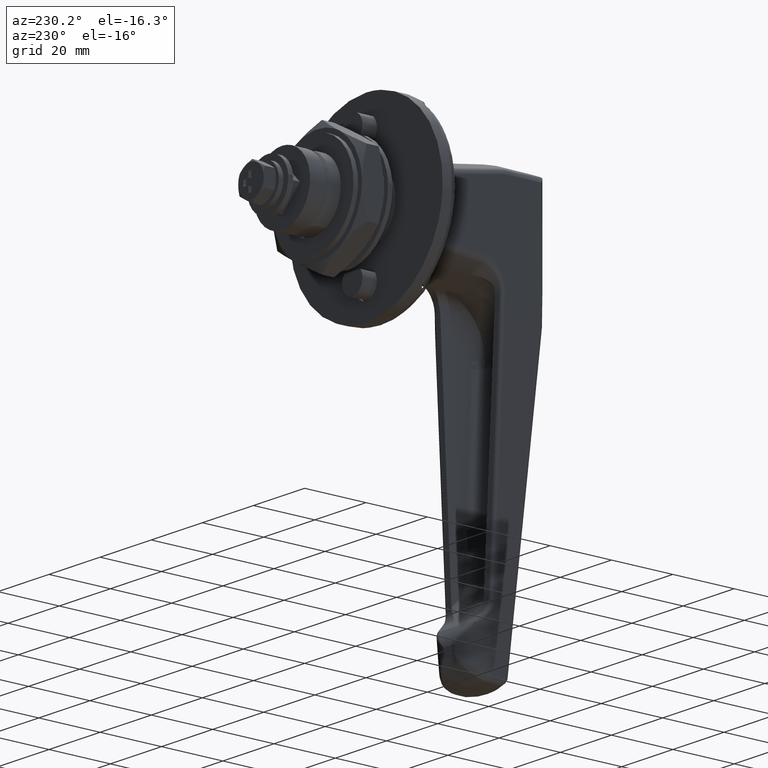
[diagram: clean part render]
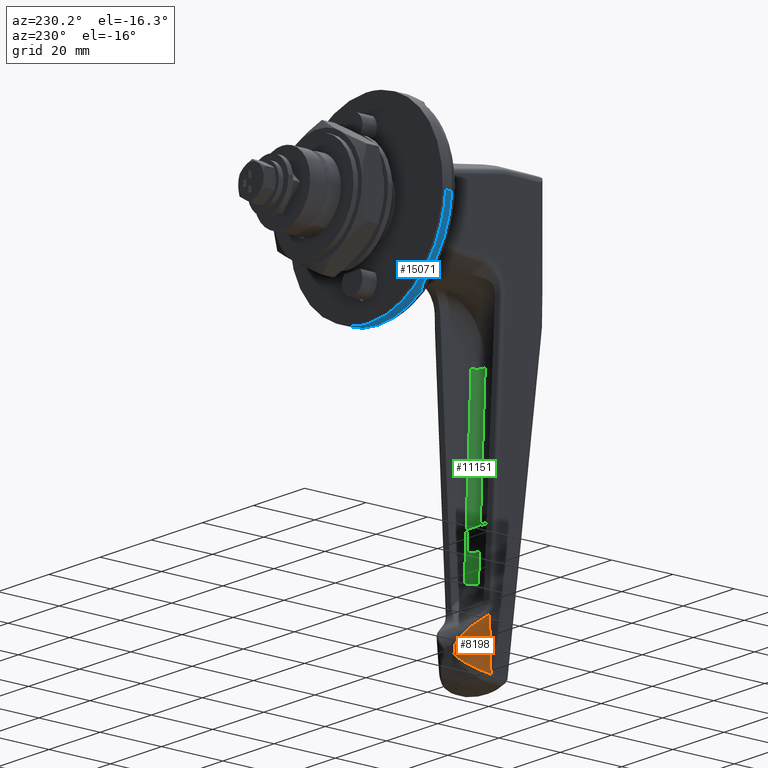
[diagram: same view with three faces highlighted in distinct colors, each labeled with its STEP entity id]
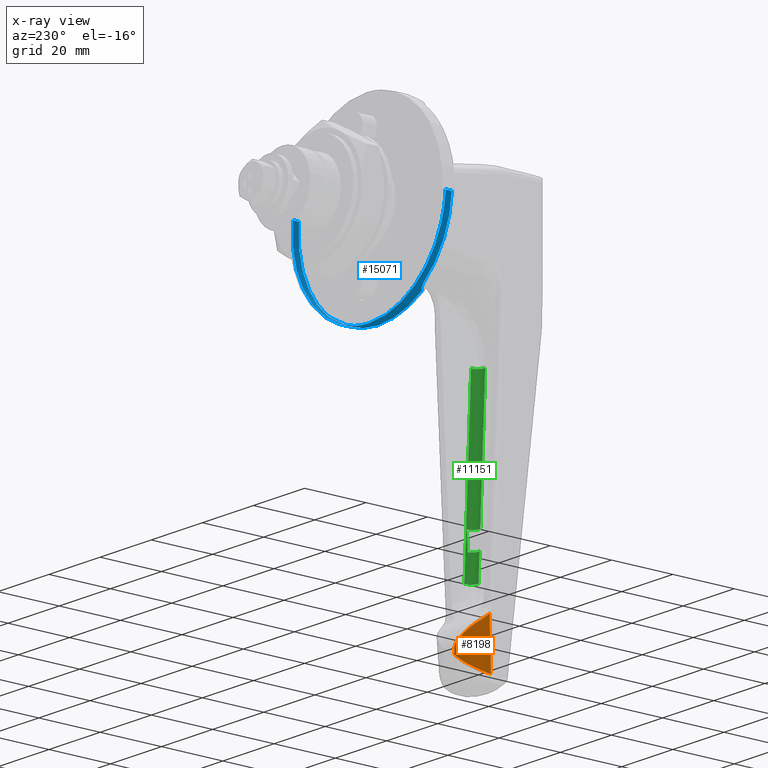
[diagram: x-ray of the same camera — body ghosted, the three highlighted faces saturated]
A machine part, auxiliary view with three faces highlighted in distinct colors.
The next image is the same camera in x-ray (body ghosted, the three faces saturated) — at least one of them is partly hidden behind the body in this view.
Their STEP definitions:

[orange] entity #8198 — the highlighted face is a freeform B-spline surface patch.
#5517=CARTESIAN_POINT('',(-32.765593022223747,8.956308236593490,-101.757900828145000));
#5518=VERTEX_POINT('',#5517);
#5586=CARTESIAN_POINT('',(-32.244694892669202,8.901885356179239,-102.235023154359200));
#5587=VERTEX_POINT('',#5586);
#5601=CARTESIAN_POINT('',(-32.765593022223747,8.956308236593490,-101.757900828144800));
#5602=CARTESIAN_POINT('',(-32.724210206954567,8.953932934731332,-101.799942866783000));
#5603=CARTESIAN_POINT('',(-32.682160678715810,8.951050644539311,-101.841550528935300));
#5604=CARTESIAN_POINT('',(-32.597250492678207,8.944238833378870,-101.923409670291800));
#5605=CARTESIAN_POINT('',(-32.468418833319667,8.932435929659073,-102.044416625780700));
#5606=CARTESIAN_POINT('',(-32.335287509796849,8.915602621601362,-102.160155564901700));
#5607=CARTESIAN_POINT('',(-32.244694892669202,8.901885356179239,-102.235023154359000));
#5608=B_SPLINE_CURVE_WITH_KNOTS('',3,(#5601,#5602,#5603,#5604,#5605,#5606,#5607),.UNSPECIFIED.,.F.,.U.,(4,2,1,4),(0.0,0.250000000000005,0.500000000000009,1.0),.UNSPECIFIED.);
#5609=EDGE_CURVE('',#5518,#5587,#5608,.T.);
#5682=CARTESIAN_POINT('',(-29.570555912119101,7.712681626440290,-104.440881089107410));
#5683=VERTEX_POINT('',#5682);
#5697=CARTESIAN_POINT('',(-32.244694892669202,8.901885356179239,-102.235023154359200));
#5698=CARTESIAN_POINT('',(-32.125854096547613,8.883890835267243,-102.333235616002400));
#5699=CARTESIAN_POINT('',(-32.007503476589733,8.861740013966099,-102.431025906224900));
#5700=CARTESIAN_POINT('',(-31.771772814002130,8.809208553304583,-102.625770537909300));
#5701=CARTESIAN_POINT('',(-31.654300183224901,8.778783719564222,-102.722801265033990));
#5702=CARTESIAN_POINT('',(-31.305972092992040,8.676001528101994,-103.010460678486890));
#5703=CARTESIAN_POINT('',(-31.078322004813941,8.592025696286733,-103.198388658849500));
#5704=CARTESIAN_POINT('',(-30.631929632516499,8.393862684114872,-103.566699935362290));
#5705=CARTESIAN_POINT('',(-30.413187059519721,8.279676669412593,-103.747083589088110));
#5706=CARTESIAN_POINT('',(-29.984837312132051,8.020186652845180,-104.100031618162210));
#5707=CARTESIAN_POINT('',(-29.775225320554728,7.874899753305945,-104.272600537861810));
#5708=CARTESIAN_POINT('',(-29.570555912119101,7.712681626440280,-104.440881089107410));
#5709=B_SPLINE_CURVE_WITH_KNOTS('',3,(#5697,#5698,#5699,#5700,#5701,#5702,#5703,#5704,#5705,#5706,#5707,#5708),.UNSPECIFIED.,.F.,.U.,(4,2,2,2,2,4),(0.0,0.125000000000002,0.250000000000003,0.500000000000002,0.750000000000001,1.0),.UNSPECIFIED.);
#5710=EDGE_CURVE('',#5587,#5683,#5709,.T.);
#5769=CARTESIAN_POINT('',(-27.100000000000001,2.230234855366315,-109.313708498984600));
#5770=VERTEX_POINT('',#5769);
#5801=CARTESIAN_POINT('',(-29.570555912119101,7.712681626440290,-104.440881089107410));
#5802=CARTESIAN_POINT('',(-29.351246788120559,7.538860264608465,-104.621198512027410));
#5803=CARTESIAN_POINT('',(-29.150309149125050,7.353850430143197,-104.805767579889410));
#5804=CARTESIAN_POINT('',(-28.779750416315149,6.965382695744132,-105.182811867575500));
#5805=CARTESIAN_POINT('',(-28.610168567388360,6.761896016632089,-105.375291020999100));
#5806=CARTESIAN_POINT('',(-28.299218491099349,6.338793414640874,-105.767890245727600));
#5807=CARTESIAN_POINT('',(-28.157868210712930,6.119164089158614,-105.968011860839700));
#5808=CARTESIAN_POINT('',(-27.965709593153250,5.778676685009764,-106.273906173927100));
#5809=CARTESIAN_POINT('',(-27.904990133727470,5.663308903190572,-106.376843312448200));
#5810=CARTESIAN_POINT('',(-27.791080891358110,5.431254416544082,-106.582653531263300));
#5811=CARTESIAN_POINT('',(-27.737728172474370,5.314291076449501,-106.685776098675500));
#5812=CARTESIAN_POINT('',(-27.587939531966779,4.960793330413890,-106.995834678588590));
#5813=CARTESIAN_POINT('',(-27.501740822275050,4.721661097827860,-107.203461359338900));
#5814=CARTESIAN_POINT('',(-27.354732947028790,4.237237846679991,-107.620756650706100));
#5815=CARTESIAN_POINT('',(-27.293932017697390,3.991943562361895,-107.830424455732000));
#5816=CARTESIAN_POINT('',(-27.221049843266670,3.619747276905851,-108.146618142374190));
#5817=CARTESIAN_POINT('',(-27.199815612945780,3.494970807436498,-108.252298230414500));
#5818=CARTESIAN_POINT('',(-27.163419044468132,3.244036853392226,-108.464253083671300));
#5819=CARTESIAN_POINT('',(-27.148252917735931,3.117783013353220,-108.570608328072790));
#5820=CARTESIAN_POINT('',(-27.124070413328599,2.864971409319164,-108.783068029408200));
#5821=CARTESIAN_POINT('',(-27.115033517080779,2.738304431475718,-108.889265109428390));
#5822=CARTESIAN_POINT('',(-27.106005344062410,2.547937147314449,-109.048536352140800));
#5823=CARTESIAN_POINT('',(-27.103750749365961,2.484412114601210,-109.101629437131710));
#5824=CARTESIAN_POINT('',(-27.101498413573509,2.389075961672659,-109.181232195176700));
#5825=CARTESIAN_POINT('',(-27.100935834871340,2.357288599670265,-109.207760759029500));
#5826=CARTESIAN_POINT('',(-27.100186325268361,2.293697027602217,-109.260807018305400));
#5827=CARTESIAN_POINT('',(-27.100000000000009,2.261675567271687,-109.287504116953100));
#5828=CARTESIAN_POINT('',(-27.100000000000001,2.230234855366320,-109.313708498984600));
#5829=B_SPLINE_CURVE_WITH_KNOTS('',3,(#5801,#5802,#5803,#5804,#5805,#5806,#5807,#5808,#5809,#5810,#5811,#5812,#5813,#5814,#5815,#5816,#5817,#5818,#5819,#5820,#5821,#5822,#5823,#5824,#5825,#5826,#5827,#5828),.UNSPECIFIED.,.F.,.U.,(4,2,2,2,2,2,2,2,2,2,2,2,2,4),(0.0,0.124999999999997,0.249999999999994,0.374999999999991,0.437499999999989,0.499999999999988,0.624999999999988,0.749999999999987,0.812499999999989,0.874999999999991,0.937499999999992,0.968749999999994,0.984374999999997,1.0),.UNSPECIFIED.);
#5830=EDGE_CURVE('',#5683,#5770,#5829,.T.);
#6967=CARTESIAN_POINT('',(-27.100000000000001,1.879582369733885,-111.895773735327400));
#6968=VERTEX_POINT('',#6967);
#6969=CARTESIAN_POINT('',(-33.981590842281364,8.084858411354070,-117.183366468084000));
#6970=VERTEX_POINT('',#6969);
#6971=CARTESIAN_POINT('',(-27.100000000000001,1.879582369733880,-111.895773735327400));
#6972=CARTESIAN_POINT('',(-27.099999999999991,2.251876271627749,-112.217803688522690));
#6973=CARTESIAN_POINT('',(-27.139197394631090,2.623964084839884,-112.532876163052610));
#6974=CARTESIAN_POINT('',(-27.256600881536620,3.180184349342706,-112.996079566092210));
#6975=CARTESIAN_POINT('',(-27.305560446368329,3.365285074149444,-113.148937477529900));
#6976=CARTESIAN_POINT('',(-27.394256440801829,3.642271269659049,-113.376053726953200));
#6977=CARTESIAN_POINT('',(-27.426277567222961,3.734183940854453,-113.451146558233400));
#6978=CARTESIAN_POINT('',(-27.494972210450410,3.916465440818941,-113.599593660019290));
#6979=CARTESIAN_POINT('',(-27.531679662795678,4.006941543961628,-113.673035897706000));
#6980=CARTESIAN_POINT('',(-27.726987719146759,4.455925841991786,-114.036451668559290));
#6981=CARTESIAN_POINT('',(-27.920604379201460,4.804348583505875,-114.315112476073000));
#6982=CARTESIAN_POINT('',(-28.211749758555200,5.224293050508469,-114.649352946297000));
#6983=CARTESIAN_POINT('',(-28.272454175971610,5.307495903612101,-114.715492251733910));
#6984=CARTESIAN_POINT('',(-28.398956572505380,5.472245523023075,-114.846360441553600));
#6985=CARTESIAN_POINT('',(-28.464881746072258,5.553928379257349,-114.911197243607210));
#6986=CARTESIAN_POINT('',(-28.668710393231859,5.794232499092249,-115.101917127595100));
#6987=CARTESIAN_POINT('',(-28.813071122730360,5.948720696779230,-115.224494815216500));
#6988=CARTESIAN_POINT('',(-29.118838238644681,6.245877771143564,-115.460868154526000));
#6989=CARTESIAN_POINT('',(-29.280243101510479,6.388548592185576,-115.574663480458990));
#6990=CARTESIAN_POINT('',(-29.535544276321989,6.593148616725787,-115.738881211850300));
#6991=CARTESIAN_POINT('',(-29.622847303956171,6.659778142428118,-115.792539670588200));
#6992=CARTESIAN_POINT('',(-29.801975577511051,6.789767601515602,-115.897694229612100));
#6993=CARTESIAN_POINT('',(-29.893893365163411,6.853188141476921,-115.949239809639000));
#6994=CARTESIAN_POINT('',(-30.364189416655940,7.161078283837039,-116.201000668217600));
#6995=CARTESIAN_POINT('',(-30.766129809468531,7.372878018785907,-116.379116700509900));
#6996=CARTESIAN_POINT('',(-31.301412665369170,7.591411321710607,-116.574406651615400));
#6997=CARTESIAN_POINT('',(-31.410126667723329,7.632786088728645,-116.612085445275800));
#6998=CARTESIAN_POINT('',(-31.630949651234509,7.710702821140878,-116.684682903241400));
#6999=CARTESIAN_POINT('',(-31.743273996956809,7.747308438726891,-116.719664454579500));
#7000=CARTESIAN_POINT('',(-32.084045552230599,7.849123345035231,-116.820011673758400));
#7001=CARTESIAN_POINT('',(-32.314235248526430,7.905787354950514,-116.880219657006510));
#7002=CARTESIAN_POINT('',(-32.780488198524800,7.996592952608050,-116.988027805386910));
#7003=CARTESIAN_POINT('',(-33.016551551392837,8.030736445708637,-117.035626122578900));
#7004=CARTESIAN_POINT('',(-33.375077417434177,8.064455299481011,-117.097874718486490));
#7005=CARTESIAN_POINT('',(-33.495325881945583,8.072773157244914,-117.117096814382510));
#7006=CARTESIAN_POINT('',(-33.676824492273717,8.080735037277085,-117.143654457018000));
#7007=CARTESIAN_POINT('',(-33.737511774885462,8.082636093524577,-117.152127596784500));
#7008=CARTESIAN_POINT('',(-33.859265697538277,8.084904987509228,-117.168315767624700));
#7009=CARTESIAN_POINT('',(-33.920498003418118,8.085271720107643,-117.176050521953500));
#7010=CARTESIAN_POINT('',(-33.981590842281364,8.084858411354080,-117.183366468083800));
#7011=B_SPLINE_CURVE_WITH_KNOTS('',3,(#6971,#6972,#6973,#6974,#6975,#6976,#6977,#6978,#6979,#6980,#6981,#6982,#6983,#6984,#6985,#6986,#6987,#6988,#6989,#6990,#6991,#6992,#6993,#6994,#6995,#6996,#6997,#6998,#6999,#7000,#7001,#7002,#7003,#7004,#7005,#7006,#7007,#7008,#7009,#7010),.UNSPECIFIED.,.F.,.U.,(4,2,2,2,2,2,2,2,2,2,2,2,2,2,2,2,2,2,2,4),(0.0,0.125000000000003,0.187500000000004,0.218750000000004,0.250000000000004,0.375000000000003,0.406250000000002,0.437500000000002,0.500000000000002,0.562500000000001,0.593750000000000,0.624999999999998,0.749999999999995,0.781249999999996,0.812499999999997,0.874999999999997,0.937499999999997,0.968749999999998,0.984374999999999,1.0),.UNSPECIFIED.);
#7012=EDGE_CURVE('',#6968,#6970,#7011,.T.);
#8137=CARTESIAN_POINT('',(-32.758297035303400,8.961536935544936,-101.665348034305100));
#8138=CARTESIAN_POINT('',(-27.099999999999998,8.961536935544926,-101.665348034305010));
#8139=CARTESIAN_POINT('',(-27.100000000000001,3.312247848915322,-101.346195789427300));
#8140=CARTESIAN_POINT('',(-32.872198023535610,8.879909325155918,-103.110232022869990));
#8141=CARTESIAN_POINT('',(-27.099999999999998,8.879909325155907,-103.110232022869910));
#8142=CARTESIAN_POINT('',(-27.100000000000001,3.116900579455411,-102.784655273258490));
#8143=CARTESIAN_POINT('',(-32.986099011767813,8.798281714766899,-104.555116011434900));
#8144=CARTESIAN_POINT('',(-27.099999999999998,8.798281714766890,-104.555116011434810));
#8145=CARTESIAN_POINT('',(-27.100000000000001,2.921553309995498,-104.223114757089800));
#8146=CARTESIAN_POINT('',(-33.099999999999987,8.716654104377881,-106.0));
#8147=CARTESIAN_POINT('',(-27.099999999999998,8.716654104377874,-105.999999999999740));
#8148=CARTESIAN_POINT('',(-27.100000000000001,2.726206040535585,-105.661574240921000));
#8149=CARTESIAN_POINT('',(-33.396295609733919,8.504312640386127,-109.758639753974510));
#8150=CARTESIAN_POINT('',(-27.099999999999998,8.504312640386118,-109.758639753974350));
#8151=CARTESIAN_POINT('',(-27.100000000000001,2.218040666267931,-109.403501650456410));
#8152=CARTESIAN_POINT('',(-33.692591219467843,8.291971176394373,-113.517279507949100));
#8153=CARTESIAN_POINT('',(-27.099999999999998,8.291971176394361,-113.517279507949070));
#8154=CARTESIAN_POINT('',(-27.100000000000001,1.709875292000276,-113.145429059991700));
#8155=CARTESIAN_POINT('',(-33.988886829201711,8.079629712402621,-117.275919261923800));
#8156=CARTESIAN_POINT('',(-27.099999999999998,8.079629712402605,-117.275919261923830));
#8157=CARTESIAN_POINT('',(-27.100000000000001,1.201709917732618,-116.887356469527010));
#8165=(BOUNDED_SURFACE()B_SPLINE_SURFACE(2,3,((#8137,#8140,#8143,#8146,#8149,#8152,#8155),(#8138,#8141,#8144,#8147,#8150,#8153,#8156),(#8139,#8142,#8145,#8148,#8151,#8154,#8157)),.UNSPECIFIED.,.F.,.F.,.U.)B_SPLINE_SURFACE_WITH_KNOTS((3,3),(4,3,4),(0.0,11.413881417234929),(0.0,4.354989802604458,15.683814766940539),.UNSPECIFIED.)GEOMETRIC_REPRESENTATION_ITEM()RATIONAL_B_SPLINE_SURFACE(((1.0,1.0,1.0,1.0,1.0,1.0,1.0),(0.707106781186548,0.707106781186548,0.707106781186548,0.707106781186548,0.707106781186548,0.707106781186548,0.707106781186548),(1.0,1.0,1.0,1.0,1.0,1.0,1.0)))REPRESENTATION_ITEM('')SURFACE());
#8166=CARTESIAN_POINT('',(-32.765593022223733,8.956308236593497,-101.757900828144900));
#8167=CARTESIAN_POINT('',(-32.877062014815820,8.876423525854957,-103.171933885429890));
#8168=CARTESIAN_POINT('',(-32.988531007407907,8.796538815116419,-104.585966942715000));
#8169=CARTESIAN_POINT('',(-33.099999999999987,8.716654104377881,-106.0));
#8170=CARTESIAN_POINT('',(-33.393863614093803,8.506055540036604,-109.727788822694710));
#8171=CARTESIAN_POINT('',(-33.687727228187612,8.295456975695332,-113.455577645389300));
#8172=CARTESIAN_POINT('',(-33.981590842281371,8.084858411354055,-117.183366468084100));
#8173=B_SPLINE_CURVE_WITH_KNOTS('',3,(#8166,#8167,#8168,#8169,#8170,#8171,#8172),.UNSPECIFIED.,.F.,.U.,(4,3,4),(0.417252876407138,0.458886859136457,0.568645746782704),.UNSPECIFIED.);
#8174=EDGE_CURVE('',#5518,#6970,#8173,.T.);
#8175=ORIENTED_EDGE('',*,*,#8174,.F.);
#8176=ORIENTED_EDGE('',*,*,#5609,.T.);
#8177=ORIENTED_EDGE('',*,*,#5710,.T.);
#8178=ORIENTED_EDGE('',*,*,#5830,.T.);
#8179=CARTESIAN_POINT('',(-27.100000000000001,2.054908612550108,-110.604741117156000));
#8180=VERTEX_POINT('',#8179);
#8181=CARTESIAN_POINT('',(-27.100000000000001,2.054908612550108,-110.604741117156000));
#8182=CARTESIAN_POINT('',(-27.100000000000001,2.113350693488845,-110.174396911098900));
#8183=CARTESIAN_POINT('',(-27.100000000000001,2.171792774427581,-109.744052705041700));
#8184=CARTESIAN_POINT('',(-27.100000000000001,2.230234855366318,-109.313708498984600));
#8185=B_SPLINE_CURVE_WITH_KNOTS('',3,(#8181,#8182,#8183,#8184),.UNSPECIFIED.,.F.,.U.,(4,4),(0.507618132198583,0.520345532390288),.UNSPECIFIED.);
#8186=EDGE_CURVE('',#8180,#5770,#8185,.T.);
#8187=ORIENTED_EDGE('',*,*,#8186,.F.);
#8188=CARTESIAN_POINT('',(-27.100000000000001,1.879582369733899,-111.895773735327400));
#8189=CARTESIAN_POINT('',(-27.100000000000001,1.938024450672635,-111.465429529270300));
#8190=CARTESIAN_POINT('',(-27.100000000000001,1.996466531611371,-111.035085323213200));
#8191=CARTESIAN_POINT('',(-27.100000000000001,2.054908612550108,-110.604741117156000));
#8192=B_SPLINE_CURVE_WITH_KNOTS('',3,(#8188,#8189,#8190,#8191),.UNSPECIFIED.,.F.,.U.,(4,4),(0.494890732006878,0.507618132198583),.UNSPECIFIED.);
#8193=EDGE_CURVE('',#6968,#8180,#8192,.T.);
#8194=ORIENTED_EDGE('',*,*,#8193,.F.);
#8195=ORIENTED_EDGE('',*,*,#7012,.T.);
#8196=EDGE_LOOP('',(#8175,#8176,#8177,#8178,#8187,#8194,#8195));
#8197=FACE_OUTER_BOUND('',#8196,.T.);
#8198=ADVANCED_FACE('',(#8197),#8165,.T.);

[blue] entity #15071 — the highlighted face is a freeform B-spline surface patch.
#14730=CARTESIAN_POINT('',(-2.999999999998411,-29.790287132915271,3.541015749517845));
#14731=VERTEX_POINT('',#14730);
#14745=CARTESIAN_POINT('',(-0.999999999999890,-29.790290576313691,3.540986780143569));
#14746=VERTEX_POINT('',#14745);
#14747=CARTESIAN_POINT('',(-0.999999999999890,-29.790290576313691,3.540986780143569));
#14748=CARTESIAN_POINT('',(-2.999999999998411,-29.790287132915271,3.541015749517845));
#14749=QUASI_UNIFORM_CURVE('',1,(#14747,#14748),.UNSPECIFIED.,.F.,.U.);
#14750=EDGE_CURVE('',#14746,#14731,#14749,.T.);
#14767=CARTESIAN_POINT('',(-0.999999999999890,29.944045026257431,-1.831438632648637));
#14768=VERTEX_POINT('',#14767);
#14784=CARTESIAN_POINT('',(-2.999999999997995,29.944045772213190,-1.831426436063631));
#14785=VERTEX_POINT('',#14784);
#14786=CARTESIAN_POINT('',(-0.999999999999890,29.944045026257431,-1.831438632648637));
#14787=CARTESIAN_POINT('',(-2.999999999997995,29.944045772213190,-1.831426436063631));
#14788=QUASI_UNIFORM_CURVE('',1,(#14786,#14787),.UNSPECIFIED.,.F.,.U.);
#14789=EDGE_CURVE('',#14768,#14785,#14788,.T.);
#14897=CARTESIAN_POINT('',(-0.923965625829298,29.944043952655999,-1.831456186045707));
#14898=CARTESIAN_POINT('',(-0.923965625829298,28.112587766610297,-31.775500138701705));
#14899=CARTESIAN_POINT('',(-0.923965625829298,-1.831456186045707,-29.944043952655999));
#14900=CARTESIAN_POINT('',(-0.923965625829298,-31.775500138701705,-28.112587766610297));
#14901=CARTESIAN_POINT('',(-0.923965625829298,-29.944043952655999,1.831456186045707));
#14902=CARTESIAN_POINT('',(-0.923965625829298,-29.891628463458165,2.688441859139328));
#14903=CARTESIAN_POINT('',(-0.923965625829298,-29.790285790909980,3.541027039702751));
#14904=CARTESIAN_POINT('',(-4.119310200348423,29.944043952655999,-1.831456186045707));
#14905=CARTESIAN_POINT('',(-4.119310200348424,28.112587766610297,-31.775500138701705));
#14906=CARTESIAN_POINT('',(-4.119310200348423,-1.831456186045707,-29.944043952655999));
#14907=CARTESIAN_POINT('',(-4.119310200348424,-31.775500138701705,-28.112587766610297));
#14908=CARTESIAN_POINT('',(-4.119310200348423,-29.944043952655999,1.831456186045707));
#14909=CARTESIAN_POINT('',(-4.119310200348424,-29.891628463458165,2.688441859139328));
#14910=CARTESIAN_POINT('',(-4.119310200348423,-29.790285790909980,3.541027039702751));
#14918=(BOUNDED_SURFACE()B_SPLINE_SURFACE(2,1,((#14897,#14904),(#14898,#14905),(#14899,#14906),(#14900,#14907),(#14901,#14908),(#14902,#14909),(#14903,#14910)),.UNSPECIFIED.,.F.,.F.,.U.)B_SPLINE_SURFACE_WITH_KNOTS((3,2,2,3),(2,2),(0.0,49.705627484771391,99.411254969542782,101.399480068933600),(0.0,3.195344574519126),.UNSPECIFIED.)GEOMETRIC_REPRESENTATION_ITEM()RATIONAL_B_SPLINE_SURFACE(((1.0,1.0),(0.707106781186548,0.707106781186548),(1.0,1.0),(0.707106781186548,0.707106781186548),(1.0,1.0),(0.988284271247462,0.988284271247462),(0.977505800795127,0.977505800795127)))REPRESENTATION_ITEM('')SURFACE());
#14919=CARTESIAN_POINT('',(-2.999999999999890,-18.688129573343851,-23.468144644387898));
#14920=VERTEX_POINT('',#14919);
#14921=CARTESIAN_POINT('',(-2.999999999998411,-29.790287132915264,3.541015749517845));
#14922=CARTESIAN_POINT('',(-2.999999999999890,-29.999999999999996,1.776717884785972));
#14923=CARTESIAN_POINT('',(-2.999999999999890,-30.0,0.0));
#14924=CARTESIAN_POINT('',(-2.999999999999890,-30.0,-14.460287250736613));
#14925=CARTESIAN_POINT('',(-2.999999999999890,-18.688129573343840,-23.468144644387881));
#14933=(BOUNDED_CURVE()B_SPLINE_CURVE(2,(#14921,#14922,#14923,#14924,#14925),.UNSPECIFIED.,.F.,.U.)B_SPLINE_CURVE_WITH_KNOTS((3,2,3),(0.432711680239094,0.500000000000000,1.0),.UNSPECIFIED.)CURVE()GEOMETRIC_REPRESENTATION_ITEM()RATIONAL_B_SPLINE_CURVE((0.976896835911661,0.986652102806900,1.0,0.900815644969822,1.0))REPRESENTATION_ITEM(''));
#14934=EDGE_CURVE('',#14731,#14920,#14933,.T.);
#14935=ORIENTED_EDGE('',*,*,#14934,.T.);
#14936=CARTESIAN_POINT('',(-4.041374966823560,-17.024459363587599,-24.701574512114700));
#14937=VERTEX_POINT('',#14936);
#14938=CARTESIAN_POINT('',(-2.999999999999870,-18.688129573343851,-23.468144644387898));
#14939=CARTESIAN_POINT('',(-3.005584672686746,-18.669641037588320,-23.482867416769619));
#14940=CARTESIAN_POINT('',(-3.011345658906659,-18.650756312595330,-23.497869284343398));
#14941=CARTESIAN_POINT('',(-3.022991430698226,-18.613268911441740,-23.527575148456339));
#14942=CARTESIAN_POINT('',(-3.040732925836491,-18.557041315457241,-23.572021714482361));
#14943=CARTESIAN_POINT('',(-3.059362548399083,-18.500839600685008,-23.616121412402919));
#14944=CARTESIAN_POINT('',(-3.098019658664255,-18.388518042752921,-23.703827331759499));
#14945=CARTESIAN_POINT('',(-3.125659573807438,-18.313727363267720,-23.761652840222311));
#14946=CARTESIAN_POINT('',(-3.215854341003072,-18.090853563636340,-23.932322074559529));
#14947=CARTESIAN_POINT('',(-3.285944376638454,-17.943980660344661,-24.042570941862412));
#14948=CARTESIAN_POINT('',(-3.539941477780634,-17.514310302041110,-24.359301557660821));
#14949=CARTESIAN_POINT('',(-3.761205540291433,-17.253501124586659,-24.543717685992949));
#14950=CARTESIAN_POINT('',(-4.041374966823560,-17.024459363587599,-24.701574512114700));
#14951=B_SPLINE_CURVE_WITH_KNOTS('',3,(#14938,#14939,#14940,#14941,#14942,#14943,#14944,#14945,#14946,#14947,#14948,#14949,#14950),.UNSPECIFIED.,.F.,.U.,(4,2,1,2,2,2,4),(0.0,0.031249999999999,0.062499999999998,0.124999999999997,0.249999999999996,0.499999999999997,1.0),.UNSPECIFIED.);
#14952=EDGE_CURVE('',#14920,#14937,#14951,.T.);
#14953=ORIENTED_EDGE('',*,*,#14952,.T.);
#14954=CARTESIAN_POINT('',(-3.864578674720885,-8.895910E-016,-30.0));
#14955=VERTEX_POINT('',#14954);
#14956=CARTESIAN_POINT('',(-4.041374966823558,-17.024459363587599,-24.701574512114700));
#14957=CARTESIAN_POINT('',(-4.029682063513653,-16.399385505975079,-25.132378810964010));
#14958=CARTESIAN_POINT('',(-4.018298864711817,-15.760983419789550,-25.537424652622931));
#14959=CARTESIAN_POINT('',(-3.996288794977459,-14.458050278730591,-26.297023374993849));
#14960=CARTESIAN_POINT('',(-3.985660449640442,-13.793518370551491,-26.651574561347090));
#14961=CARTESIAN_POINT('',(-3.965174096529882,-12.438398092703160,-27.310324577441829));
#14962=CARTESIAN_POINT('',(-3.955293156687699,-11.747810438587180,-27.614524096288012));
#14963=CARTESIAN_POINT('',(-3.941081930153761,-10.692106581488570,-28.032518699564829));
#14964=CARTESIAN_POINT('',(-3.936456416965100,-10.336897913245849,-28.165459357293020));
#14965=CARTESIAN_POINT('',(-3.927484634621433,-9.619774065951582,-28.418383243883461));
#14966=CARTESIAN_POINT('',(-3.923159751421754,-9.259543217859095,-28.537763334186710));
#14967=CARTESIAN_POINT('',(-3.910753568745226,-8.175844713429211,-28.874346228229982));
#14968=CARTESIAN_POINT('',(-3.903231419412584,-7.448539535370493,-29.070318598676671));
#14969=CARTESIAN_POINT('',(-3.889963469968856,-5.984453991119490,-29.406639982607970));
#14970=CARTESIAN_POINT('',(-3.884215800937833,-5.247673286125022,-29.546986930845321));
#14971=CARTESIAN_POINT('',(-3.874756795977550,-3.764675859662766,-29.772297984554822));
#14972=CARTESIAN_POINT('',(-3.871043390131793,-3.018459260385282,-29.857262726474470));
#14973=CARTESIAN_POINT('',(-3.865955668852089,-1.516469366826673,-29.971111999453811));
#14974=CARTESIAN_POINT('',(-3.864578674720874,-0.760696680814574,-29.999999999999989));
#14975=CARTESIAN_POINT('',(-3.864578674720875,-5.081255E-015,-30.0));
#14976=B_SPLINE_CURVE_WITH_KNOTS('',3,(#14956,#14957,#14958,#14959,#14960,#14961,#14962,#14963,#14964,#14965,#14966,#14967,#14968,#14969,#14970,#14971,#14972,#14973,#14974,#14975),.UNSPECIFIED.,.F.,.U.,(4,2,2,2,2,2,2,2,2,4),(0.0,0.124999999999999,0.249999999999999,0.374999999999999,0.437499999999999,0.499999999999999,0.624999999999999,0.749999999999999,0.875000000000000,1.0),.UNSPECIFIED.);
#14977=EDGE_CURVE('',#14937,#14955,#14976,.T.);
#14978=ORIENTED_EDGE('',*,*,#14977,.T.);
#14979=CARTESIAN_POINT('',(-4.041374966823550,17.024459363586949,-24.701574512115151));
#14980=VERTEX_POINT('',#14979);
#14981=CARTESIAN_POINT('',(-3.864578674720880,-8.895910E-016,-30.0));
#14982=CARTESIAN_POINT('',(-3.864578674720880,0.760697378696045,-30.0));
#14983=CARTESIAN_POINT('',(-3.865955671102257,1.516469841480329,-29.971111948111229));
#14984=CARTESIAN_POINT('',(-3.871043383759201,3.018457568716646,-29.857262870065512));
#14985=CARTESIAN_POINT('',(-3.874756778823924,3.764672224588984,-29.772298373258700));
#14986=CARTESIAN_POINT('',(-3.884215736511085,5.247664130890624,-29.546988485365109));
#14987=CARTESIAN_POINT('',(-3.889963369059621,5.984441258923129,-29.406642456747850));
#14988=CARTESIAN_POINT('',(-3.903231210460251,7.448518075067407,-29.070323979032288));
#14989=CARTESIAN_POINT('',(-3.910753288173947,8.175818101836677,-28.874353593956940));
#14990=CARTESIAN_POINT('',(-3.923159333077081,9.259507726396494,-28.537774807097300));
#14991=CARTESIAN_POINT('',(-3.927484091160835,9.619729524212703,-28.418398370848099));
#14992=CARTESIAN_POINT('',(-3.936455937601240,10.336860699441459,-28.165473064792891));
#14993=CARTESIAN_POINT('',(-3.941081483848070,10.692072753013560,-28.032531645454210));
#14994=CARTESIAN_POINT('',(-3.955292809290348,11.747785979402810,-27.614534676844610));
#14995=CARTESIAN_POINT('',(-3.965173813893122,12.438378832301160,-27.310333474596671));
#14996=CARTESIAN_POINT('',(-3.985660278759903,13.793507631922299,-26.651580247287690));
#14997=CARTESIAN_POINT('',(-3.996288672699241,14.458042862493000,-26.297027532097729));
#14998=CARTESIAN_POINT('',(-4.018298819970743,15.760980948960921,-25.537426259591651));
#14999=CARTESIAN_POINT('',(-4.029682047645386,16.399384657695840,-25.132379395602630));
#15000=CARTESIAN_POINT('',(-4.041374966823559,17.024459363586949,-24.701574512115151));
#15001=B_SPLINE_CURVE_WITH_KNOTS('',3,(#14981,#14982,#14983,#14984,#14985,#14986,#14987,#14988,#14989,#14990,#14991,#14992,#14993,#14994,#14995,#14996,#14997,#14998,#14999,#15000),.UNSPECIFIED.,.F.,.U.,(4,2,2,2,2,2,2,2,2,4),(0.0,0.125000000000000,0.250000000000000,0.375000000000000,0.500000000000000,0.562500000000000,0.625000000000000,0.750000000000000,0.875000000000000,1.0),.UNSPECIFIED.);
#15002=EDGE_CURVE('',#14955,#14980,#15001,.T.);
#15003=ORIENTED_EDGE('',*,*,#15002,.T.);
#15004=CARTESIAN_POINT('',(-2.999999999999890,18.688129573343851,-23.468144644387898));
#15005=VERTEX_POINT('',#15004);
#15006=CARTESIAN_POINT('',(-4.041374966823545,17.024459363586949,-24.701574512115151));
#15007=CARTESIAN_POINT('',(-3.760828086122128,17.253809697754761,-24.543505015688929));
#15008=CARTESIAN_POINT('',(-3.540029505604159,17.514406603515500,-24.359213347131320));
#15009=CARTESIAN_POINT('',(-3.328952039840326,17.871166598871032,-24.096249946686068));
#15010=CARTESIAN_POINT('',(-3.289962918476277,17.944098639384851,-24.041999346350408));
#15011=CARTESIAN_POINT('',(-3.218559651968994,18.090735755531359,-23.931855096783149));
#15012=CARTESIAN_POINT('',(-3.185987829901320,18.164677657300398,-23.875788115044070));
#15013=CARTESIAN_POINT('',(-3.125780659088654,18.313405173444568,-23.761901511902671));
#15014=CARTESIAN_POINT('',(-3.098124392012159,18.388224205904049,-23.704055689867761));
#15015=CARTESIAN_POINT('',(-3.059419634862661,18.500668515790309,-23.616255542900578));
#15016=CARTESIAN_POINT('',(-3.040768770981609,18.556929293044600,-23.572110073703438));
#15017=CARTESIAN_POINT('',(-3.023008959453715,18.613212881373819,-23.527619498944091));
#15018=CARTESIAN_POINT('',(-3.011351545728406,18.650736969256279,-23.497884661348799));
#15019=CARTESIAN_POINT('',(-3.005577868436605,18.669663563612470,-23.482849478868498));
#15020=CARTESIAN_POINT('',(-2.999999999999890,18.688129573343851,-23.468144644387898));
#15021=B_SPLINE_CURVE_WITH_KNOTS('',3,(#15006,#15007,#15008,#15009,#15010,#15011,#15012,#15013,#15014,#15015,#15016,#15017,#15018,#15019,#15020),.UNSPECIFIED.,.F.,.U.,(4,2,2,2,2,1,2,4),(0.0,0.500000000000002,0.625000000000002,0.750000000000002,0.875000000000003,0.937500000000003,0.968750000000002,1.0),.UNSPECIFIED.);
#15022=EDGE_CURVE('',#14980,#15005,#15021,.T.);
#15023=ORIENTED_EDGE('',*,*,#15022,.T.);
#15024=CARTESIAN_POINT('',(-2.999999999999890,18.688129573343829,-23.468144644387881));
#15025=CARTESIAN_POINT('',(-2.999999999999890,29.129234231620824,-15.153694580292761));
#15026=CARTESIAN_POINT('',(-2.999999999997996,29.944045772213190,-1.831426436063631));
#15034=(BOUNDED_CURVE()B_SPLINE_CURVE(2,(#15024,#15025,#15026),.UNSPECIFIED.,.F.,.U.)B_SPLINE_CURVE_WITH_KNOTS((3,3),(0.0,0.465061728128951),.UNSPECIFIED.)CURVE()GEOMETRIC_REPRESENTATION_ITEM()RATIONAL_B_SPLINE_CURVE((1.0,0.907746304892620,0.987107261276918))REPRESENTATION_ITEM(''));
#15035=EDGE_CURVE('',#15005,#14785,#15034,.T.);
#15036=ORIENTED_EDGE('',*,*,#15035,.T.);
#15037=ORIENTED_EDGE('',*,*,#14789,.F.);
#15038=CARTESIAN_POINT('',(-0.999999999999890,0.0,-30.0));
#15039=VERTEX_POINT('',#15038);
#15040=CARTESIAN_POINT('',(-0.999999999999890,0.0,-30.0));
#15041=CARTESIAN_POINT('',(-0.999999999999890,28.221198581533315,-29.999999999999993));
#15042=CARTESIAN_POINT('',(-0.999999999999890,29.944045026257434,-1.831438632648637));
#15050=(BOUNDED_CURVE()B_SPLINE_CURVE(2,(#15040,#15041,#15042),.UNSPECIFIED.,.F.,.U.)B_SPLINE_CURVE_WITH_KNOTS((3,3),(0.0,0.239333063390048),.UNSPECIFIED.)CURVE()GEOMETRIC_REPRESENTATION_ITEM()RATIONAL_B_SPLINE_CURVE((1.0,0.719603874780819,0.976072258452887))REPRESENTATION_ITEM(''));
#15051=EDGE_CURVE('',#15039,#14768,#15050,.T.);
#15052=ORIENTED_EDGE('',*,*,#15051,.F.);
#15053=CARTESIAN_POINT('',(-0.999999999999890,-29.790290576313698,3.540986780143568));
#15054=CARTESIAN_POINT('',(-0.999999999999890,-29.999999999999993,1.776703246972336));
#15055=CARTESIAN_POINT('',(-0.999999999999890,-30.0,0.0));
#15056=CARTESIAN_POINT('',(-0.999999999999890,-29.999999999999993,-29.999999999999993));
#15057=CARTESIAN_POINT('',(-0.999999999999890,0.0,-30.0));
#15065=(BOUNDED_CURVE()B_SPLINE_CURVE(2,(#15053,#15054,#15055,#15056,#15057),.UNSPECIFIED.,.F.,.U.)B_SPLINE_CURVE_WITH_KNOTS((3,2,3),(0.729562701912139,0.750000000000000,1.0),.UNSPECIFIED.)CURVE()GEOMETRIC_REPRESENTATION_ITEM()RATIONAL_B_SPLINE_CURVE((0.956027201854851,0.976056215916785,1.0,0.707106781186547,1.0))REPRESENTATION_ITEM(''));
#15066=EDGE_CURVE('',#14746,#15039,#15065,.T.);
#15067=ORIENTED_EDGE('',*,*,#15066,.F.);
#15068=ORIENTED_EDGE('',*,*,#14750,.T.);
#15069=EDGE_LOOP('',(#14935,#14953,#14978,#15003,#15023,#15036,#15037,#15052,#15067,#15068));
#15070=FACE_OUTER_BOUND('',#15069,.T.);
#15071=ADVANCED_FACE('',(#15070),#14918,.T.);

[green] entity #11151 — the highlighted face is a freeform B-spline surface patch.
#10346=CARTESIAN_POINT('',(-40.890757751232499,-4.706411892342560,-81.0));
#10347=VERTEX_POINT('',#10346);
#10348=CARTESIAN_POINT('',(-39.100000000000001,-7.097095240752190,-81.0));
#10349=VERTEX_POINT('',#10348);
#10350=CARTESIAN_POINT('',(-40.890757751232499,-4.706411892342509,-81.0));
#10351=CARTESIAN_POINT('',(-40.890757751232499,-4.841066932697534,-80.999999999999986));
#10352=CARTESIAN_POINT('',(-40.869134902808462,-5.106699957120589,-80.999999999999929));
#10353=CARTESIAN_POINT('',(-40.805983244618162,-5.365270832835487,-81.000000000000014));
#10354=CARTESIAN_POINT('',(-40.742468458954029,-5.556452437019409,-80.999999999999972));
#10355=CARTESIAN_POINT('',(-40.718661195193398,-5.619434669957569,-81.000000000000014));
#10356=CARTESIAN_POINT('',(-40.666492694472602,-5.742287537126954,-81.0));
#10357=CARTESIAN_POINT('',(-40.638051346563977,-5.802407696484312,-80.999999999999943));
#10358=CARTESIAN_POINT('',(-40.545762439700901,-5.978908333787571,-80.999999999999943));
#10359=CARTESIAN_POINT('',(-40.474995055164612,-6.091453930219170,-80.999999999999972));
#10360=CARTESIAN_POINT('',(-40.354599771914891,-6.252378362318442,-80.999999999999972));
#10361=CARTESIAN_POINT('',(-40.311983273688753,-6.304770435671501,-81.000000000000057));
#10362=CARTESIAN_POINT('',(-40.223484113462320,-6.405014353189038,-81.000000000000028));
#10363=CARTESIAN_POINT('',(-40.177432828630273,-6.453111410508340,-80.999999999999986));
#10364=CARTESIAN_POINT('',(-40.033979877908891,-6.591447029670989,-81.000000000000014));
#10365=CARTESIAN_POINT('',(-39.931312681988473,-6.675767763122054,-80.999999999999986));
#10366=CARTESIAN_POINT('',(-39.766573391874068,-6.790180072972324,-81.000000000000028));
#10367=CARTESIAN_POINT('',(-39.709623796883783,-6.826422688945027,-80.999999999999957));
#10368=CARTESIAN_POINT('',(-39.593642818598632,-6.893797609919234,-80.999999999999957));
#10369=CARTESIAN_POINT('',(-39.534540504432918,-6.925008360781705,-81.000000000000028));
#10370=CARTESIAN_POINT('',(-39.353952760477391,-7.011332275834914,-81.000000000000057));
#10371=CARTESIAN_POINT('',(-39.229207772360382,-7.059184423847053,-80.999999999999986));
#10372=CARTESIAN_POINT('',(-39.100000000000001,-7.097095240752180,-81.0));
#10373=B_SPLINE_CURVE_WITH_KNOTS('',3,(#10350,#10351,#10352,#10353,#10354,#10355,#10356,#10357,#10358,#10359,#10360,#10361,#10362,#10363,#10364,#10365,#10366,#10367,#10368,#10369,#10370,#10371,#10372),.UNSPECIFIED.,.F.,.U.,(4,1,2,2,2,2,2,2,2,2,2,4),(0.0,0.125000000000001,0.250000000000002,0.312500000000003,0.375000000000003,0.500000000000004,0.562500000000005,0.625000000000005,0.750000000000006,0.812500000000006,0.875000000000006,1.0),.UNSPECIFIED.);
#10374=EDGE_CURVE('',#10347,#10349,#10373,.T.);
#10424=CARTESIAN_POINT('',(-39.100000000000001,-7.529596356891660,-75.0));
#10425=VERTEX_POINT('',#10424);
#10426=CARTESIAN_POINT('',(-39.100000000000001,-7.097095240752180,-81.0));
#10427=CARTESIAN_POINT('',(-39.100000000000001,-7.259623474529186,-79.001346809078598));
#10428=CARTESIAN_POINT('',(-39.100000000000001,-7.403110558306728,-77.001253462275145));
#10429=CARTESIAN_POINT('',(-39.100000000000001,-7.529596356891690,-75.0));
#10430=QUASI_UNIFORM_CURVE('',3,(#10426,#10427,#10428,#10429),.UNSPECIFIED.,.F.,.U.);
#10431=EDGE_CURVE('',#10349,#10425,#10430,.T.);
#10456=CARTESIAN_POINT('',(-41.398402975838351,-5.045377718449260,-74.999992531654200));
#10457=VERTEX_POINT('',#10456);
#10458=CARTESIAN_POINT('',(-39.100000000000001,-7.529596356891450,-75.0));
#10459=CARTESIAN_POINT('',(-39.255892392998838,-7.517234703600445,-74.999999493448996));
#10460=CARTESIAN_POINT('',(-39.408187009481132,-7.490631638013939,-74.999998998588467));
#10461=CARTESIAN_POINT('',(-39.631440926494690,-7.430190867793858,-74.999998273155427));
#10462=CARTESIAN_POINT('',(-39.704988485322403,-7.406598505903490,-74.999998034172719));
#10463=CARTESIAN_POINT('',(-39.850309366480907,-7.352390657327382,-74.999997561972421));
#10464=CARTESIAN_POINT('',(-39.922448727013801,-7.321581435705089,-74.999997327565453));
#10465=CARTESIAN_POINT('',(-40.132509184325322,-7.219964754096161,-74.999996645002739));
#10466=CARTESIAN_POINT('',(-40.264515612680000,-7.140096409327247,-74.999996216065924));
#10467=CARTESIAN_POINT('',(-40.450726742159368,-7.002488804138723,-74.999995610998369));
#10468=CARTESIAN_POINT('',(-40.510818110773627,-6.953633089672543,-74.999995415739633));
#10469=CARTESIAN_POINT('',(-40.597901392274323,-6.875741083949259,-74.999995132774430));
#10470=CARTESIAN_POINT('',(-40.626479069756464,-6.848944419476006,-74.999995039915177));
#10471=CARTESIAN_POINT('',(-40.682050929848913,-6.794322742992310,-74.999994859342067));
#10472=CARTESIAN_POINT('',(-40.709099455877073,-6.766454626020897,-74.999994771451583));
#10473=CARTESIAN_POINT('',(-40.840717860525913,-6.624375103311203,-74.999994343775597));
#10474=CARTESIAN_POINT('',(-40.934507594011500,-6.502016812774149,-74.999994039018659));
#10475=CARTESIAN_POINT('',(-41.057995237735632,-6.305483111911396,-74.999993637762472));
#10476=CARTESIAN_POINT('',(-41.096380532308352,-6.237577108089579,-74.999993513034738));
#10477=CARTESIAN_POINT('',(-41.166690106207177,-6.098190240690921,-74.999993284573392));
#10478=CARTESIAN_POINT('',(-41.198309791877477,-6.027366382514797,-74.999993181829467));
#10479=CARTESIAN_POINT('',(-41.282895020952132,-5.811609531086515,-74.999992906981319));
#10480=CARTESIAN_POINT('',(-41.325672957095861,-5.663418831845513,-74.999992767980373));
#10481=CARTESIAN_POINT('',(-41.369122618878293,-5.434508000243627,-74.999992626796626));
#10482=CARTESIAN_POINT('',(-41.380131384199487,-5.356869730337471,-74.999992591025190));
#10483=CARTESIAN_POINT('',(-41.394740798164243,-5.201510344310472,-74.999992543553859));
#10484=CARTESIAN_POINT('',(-41.398402975838380,-5.123573367295410,-74.999992531654087));
#10485=CARTESIAN_POINT('',(-41.398402975838387,-5.045377718449220,-74.999992531654101));
#10486=B_SPLINE_CURVE_WITH_KNOTS('',3,(#10458,#10459,#10460,#10461,#10462,#10463,#10464,#10465,#10466,#10467,#10468,#10469,#10470,#10471,#10472,#10473,#10474,#10475,#10476,#10477,#10478,#10479,#10480,#10481,#10482,#10483,#10484,#10485),.UNSPECIFIED.,.F.,.U.,(4,2,2,2,2,2,2,2,2,2,2,2,2,4),(0.0,0.125000000000000,0.187499999999997,0.249999999999995,0.374999999999990,0.437499999999987,0.468749999999986,0.499999999999984,0.624999999999987,0.687499999999989,0.749999999999990,0.874999999999996,0.937499999999998,1.0),.UNSPECIFIED.);
#10487=EDGE_CURVE('',#10425,#10457,#10486,.T.);
#10992=CARTESIAN_POINT('',(-37.671831529858053,-6.716446244393610,-89.532639441256407));
#10993=VERTEX_POINT('',#10992);
#10994=CARTESIAN_POINT('',(-40.162931263360150,-4.220426218163210,-89.602394253357403));
#10995=VERTEX_POINT('',#10994);
#10996=CARTESIAN_POINT('',(-37.671831529858053,-6.716446244393610,-89.532639441256407));
#10997=CARTESIAN_POINT('',(-40.151141566438966,-6.704633261066276,-89.741740131439570));
#10998=CARTESIAN_POINT('',(-40.162931263360200,-4.220426218163215,-89.602394253357403));
#11006=(BOUNDED_CURVE()B_SPLINE_CURVE(2,(#10996,#10997,#10998),.UNSPECIFIED.,.F.,.U.)CURVE()GEOMETRIC_REPRESENTATION_ITEM()QUASI_UNIFORM_CURVE()RATIONAL_B_SPLINE_CURVE((1.0,0.708786016018685,1.0))REPRESENTATION_ITEM(''));
#11007=EDGE_CURVE('',#10993,#10995,#11006,.T.);
#11055=CARTESIAN_POINT('',(-40.162931263360200,-4.220426218163215,-89.602394253357403));
#11056=CARTESIAN_POINT('',(-40.151141566438966,-6.704633261066276,-89.741740131439570));
#11057=CARTESIAN_POINT('',(-37.671831529858053,-6.716446244393610,-89.532639441256407));
#11058=CARTESIAN_POINT('',(-41.799458851091948,-5.313171503322940,-70.259795775910604));
#11059=CARTESIAN_POINT('',(-41.787669154170707,-7.797378546226010,-70.399141653992771));
#11060=CARTESIAN_POINT('',(-39.308359117589802,-7.809191529553330,-70.190040963809594));
#11061=CARTESIAN_POINT('',(-43.435986438823697,-6.405916788482670,-50.917197298463897));
#11062=CARTESIAN_POINT('',(-43.424196741902513,-8.890123831385731,-51.056543176546043));
#11063=CARTESIAN_POINT('',(-40.944886705321551,-8.901936814713061,-50.847442486362901));
#11064=CARTESIAN_POINT('',(-45.072514026555503,-7.498662073642390,-31.574598821017151));
#11065=CARTESIAN_POINT('',(-45.060724329634269,-9.982869116545464,-31.713944699099315));
#11066=CARTESIAN_POINT('',(-42.581414293053300,-9.994682099872779,-31.504844008916098));
#11067=CARTESIAN_POINT('',(-45.078370235363053,-7.502572392424262,-31.505382575343301));
#11068=CARTESIAN_POINT('',(-45.066580538441812,-9.986779435327334,-31.644728453425465));
#11069=CARTESIAN_POINT('',(-42.587270501860850,-9.998592418654651,-31.435627763242241));
#11070=CARTESIAN_POINT('',(-45.084226444170604,-7.506482711206132,-31.436166329669451));
#11071=CARTESIAN_POINT('',(-45.072436747249370,-9.990689754109209,-31.575512207751611));
#11072=CARTESIAN_POINT('',(-42.593126710668393,-10.002502737436521,-31.366411517568391));
#11073=CARTESIAN_POINT('',(-45.090082652978140,-7.510393029988003,-31.366950083995590));
#11074=CARTESIAN_POINT('',(-45.078292956056906,-9.994600072891076,-31.506295962077761));
#11075=CARTESIAN_POINT('',(-42.598982919475937,-10.006413056218390,-31.297195271894530));
#11083=(BOUNDED_SURFACE()B_SPLINE_SURFACE(2,3,((#11055,#11058,#11061,#11064,#11067,#11070,#11073),(#11056,#11059,#11062,#11065,#11068,#11071,#11074),(#11057,#11060,#11063,#11066,#11069,#11072,#11075)),.UNSPECIFIED.,.F.,.F.,.U.)B_SPLINE_SURFACE_WITH_KNOTS((3,3),(4,3,4),(0.0,4.128214664657137),(0.0,58.327316721850167,58.536037276558652),.UNSPECIFIED.)GEOMETRIC_REPRESENTATION_ITEM()RATIONAL_B_SPLINE_SURFACE(((1.0,1.0,1.0,1.0,1.0,1.0,1.0),(0.708786016018685,0.708786016018685,0.708786016018685,0.708786016018685,0.708786016018685,0.708786016018685,0.708786016018685),(1.0,1.0,1.0,1.0,1.0,1.0,1.0)))REPRESENTATION_ITEM('')SURFACE());
#11084=ORIENTED_EDGE('',*,*,#10487,.T.);
#11085=CARTESIAN_POINT('',(-45.060696064173200,-7.490770961527820,-31.714278776854599));
#11086=VERTEX_POINT('',#11085);
#11087=CARTESIAN_POINT('',(-41.398402975838373,-5.045377718449213,-74.999992531654243));
#11088=CARTESIAN_POINT('',(-42.619167338616649,-5.860508799475415,-60.571421280054352));
#11089=CARTESIAN_POINT('',(-43.839931701394939,-6.675639880501618,-46.142850028454518));
#11090=CARTESIAN_POINT('',(-45.060696064173257,-7.490770961527814,-31.714278776854659));
#11091=B_SPLINE_CURVE_WITH_KNOTS('',3,(#11087,#11088,#11089,#11090),.UNSPECIFIED.,.F.,.U.,(4,4),(0.083881650238516,0.332530959489346),.UNSPECIFIED.);
#11092=EDGE_CURVE('',#10457,#11086,#11091,.T.);
#11093=ORIENTED_EDGE('',*,*,#11092,.T.);
#11094=CARTESIAN_POINT('',(-42.560724329634198,-9.980866958505290,-31.749384741335309));
#11095=VERTEX_POINT('',#11094);
#11096=CARTESIAN_POINT('',(-42.560724329634198,-9.980866958505290,-31.749384741335309));
#11097=CARTESIAN_POINT('',(-42.601266140634429,-9.980770546919988,-31.751091315235271));
#11098=CARTESIAN_POINT('',(-42.642458492498271,-9.979674113338950,-31.752768865031431));
#11099=CARTESIAN_POINT('',(-42.724363059579993,-9.975461463610476,-31.755989583103169));
#11100=CARTESIAN_POINT('',(-42.765199021289448,-9.972353443503124,-31.757538440032480));
#11101=CARTESIAN_POINT('',(-42.887360082759407,-9.960042741688195,-31.762001636954551));
#11102=CARTESIAN_POINT('',(-42.968339199234947,-9.947860655286837,-31.764733047398011));
#11103=CARTESIAN_POINT('',(-43.089108920036139,-9.923568545413364,-31.768460609593390));
#11104=CARTESIAN_POINT('',(-43.129289488340362,-9.914451285939782,-31.769642302856909));
#11105=CARTESIAN_POINT('',(-43.208718467029890,-9.894369327648485,-31.771861956066260));
#11106=CARTESIAN_POINT('',(-43.248051287086753,-9.883390099381394,-31.772902659677779));
#11107=CARTESIAN_POINT('',(-43.364924046149447,-9.847685128584397,-31.775820898117949));
#11108=CARTESIAN_POINT('',(-43.517757757349841,-9.792711941611273,-31.779169171160270));
#11109=CARTESIAN_POINT('',(-43.664671519478503,-9.723185875505964,-31.781445299767320));
#11110=CARTESIAN_POINT('',(-43.772600473127028,-9.665494546786347,-31.782743752109059));
#11111=CARTESIAN_POINT('',(-43.808200066719337,-9.645338010935488,-31.783108342136170));
#11112=CARTESIAN_POINT('',(-43.878631302068342,-9.603137100316893,-31.783698440709070));
#11113=CARTESIAN_POINT('',(-43.913453402037348,-9.581089801989776,-31.783923381155361));
#11114=CARTESIAN_POINT('',(-44.083715110079780,-9.467354153938404,-31.784687872449069));
#11115=CARTESIAN_POINT('',(-44.209298627461230,-9.364353372872410,-31.784172128049089));
#11116=CARTESIAN_POINT('',(-44.382076243133120,-9.192219427446327,-31.781743695314638));
#11117=CARTESIAN_POINT('',(-44.437050777673853,-9.131881856089112,-31.780656463561961));
#11118=CARTESIAN_POINT('',(-44.541591390637258,-9.005092585932720,-31.777908196023251));
#11119=CARTESIAN_POINT('',(-44.590610878913992,-8.939262780689811,-31.776259211945479));
#11120=CARTESIAN_POINT('',(-44.726776294190920,-8.736549445960650,-31.770557141069741));
#11121=CARTESIAN_POINT('',(-44.803771176536920,-8.593721743620788,-31.765739579206929));
#11122=CARTESIAN_POINT('',(-44.898380250815251,-8.367834778340143,-31.756973469127232));
#11123=CARTESIAN_POINT('',(-44.926507292317112,-8.290183637364022,-31.753774390676210));
#11124=CARTESIAN_POINT('',(-44.974535659765479,-8.133961451503080,-31.746976904729291));
#11125=CARTESIAN_POINT('',(-44.994576037626750,-8.055163945325344,-31.743371575432619));
#11126=CARTESIAN_POINT('',(-45.043037535520689,-7.816757405807778,-31.731949437833372));
#11127=CARTESIAN_POINT('',(-45.059913137825653,-7.655154063589245,-31.723532412473752));
#11128=CARTESIAN_POINT('',(-45.060696064173200,-7.490770961527820,-31.714278776854599));
#11129=B_SPLINE_CURVE_WITH_KNOTS('',3,(#11096,#11097,#11098,#11099,#11100,#11101,#11102,#11103,#11104,#11105,#11106,#11107,#11108,#11109,#11110,#11111,#11112,#11113,#11114,#11115,#11116,#11117,#11118,#11119,#11120,#11121,#11122,#11123,#11124,#11125,#11126,#11127,#11128),.UNSPECIFIED.,.F.,.U.,(4,2,2,2,2,2,1,2,2,2,2,2,2,2,2,2,4),(0.0,0.031249999999998,0.062499999999996,0.124999999999997,0.156249999999998,0.187499999999998,0.250000000000000,0.312500000000001,0.343750000000000,0.374999999999998,0.499999999999993,0.562499999999993,0.624999999999993,0.749999999999996,0.812499999999997,0.874999999999998,1.0),.UNSPECIFIED.);
#11130=EDGE_CURVE('',#11095,#11086,#11129,.T.);
#11131=ORIENTED_EDGE('',*,*,#11130,.F.);
#11132=CARTESIAN_POINT('',(-42.560724329634212,-9.980866958505281,-31.749384741335369));
#11133=CARTESIAN_POINT('',(-40.931093396375502,-8.892726720468062,-51.010469641309079));
#11134=CARTESIAN_POINT('',(-39.301462463116778,-7.804586482430831,-70.271554541282683));
#11135=CARTESIAN_POINT('',(-37.671831529858053,-6.716446244393610,-89.532639441256407));
#11136=B_SPLINE_CURVE_WITH_KNOTS('',3,(#11132,#11133,#11134,#11135),.UNSPECIFIED.,.F.,.U.,(4,4),(0.0,0.331928600017760),.UNSPECIFIED.);
#11137=EDGE_CURVE('',#11095,#10993,#11136,.T.);
#11138=ORIENTED_EDGE('',*,*,#11137,.T.);
#11139=ORIENTED_EDGE('',*,*,#11007,.T.);
#11140=CARTESIAN_POINT('',(-40.162931263360200,-4.220426218163215,-89.602394253357403));
#11141=CARTESIAN_POINT('',(-40.405540092650973,-4.382421442889650,-86.734929502238231));
#11142=CARTESIAN_POINT('',(-40.648148921941747,-4.544416667616086,-83.867464751119044));
#11143=CARTESIAN_POINT('',(-40.890757751232520,-4.706411892342521,-80.999999999999872));
#11144=B_SPLINE_CURVE_WITH_KNOTS('',3,(#11140,#11141,#11142,#11143),.UNSPECIFIED.,.F.,.U.,(4,4),(0.0,0.049415366028555),.UNSPECIFIED.);
#11145=EDGE_CURVE('',#10995,#10347,#11144,.T.);
#11146=ORIENTED_EDGE('',*,*,#11145,.T.);
#11147=ORIENTED_EDGE('',*,*,#10374,.T.);
#11148=ORIENTED_EDGE('',*,*,#10431,.T.);
#11149=EDGE_LOOP('',(#11084,#11093,#11131,#11138,#11139,#11146,#11147,#11148));
#11150=FACE_OUTER_BOUND('',#11149,.T.);
#11151=ADVANCED_FACE('',(#11150),#11083,.F.);